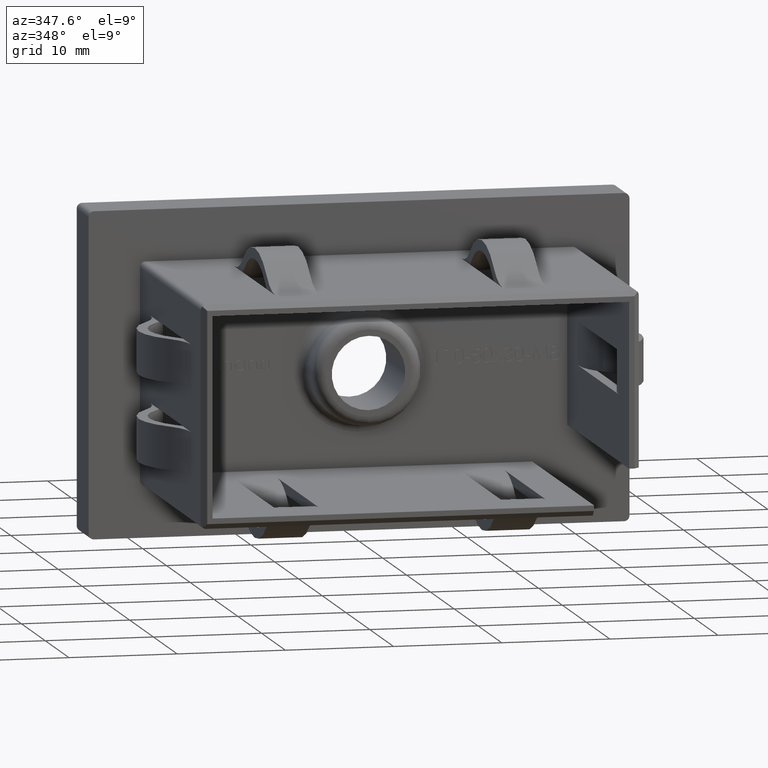
[diagram: clean part render]
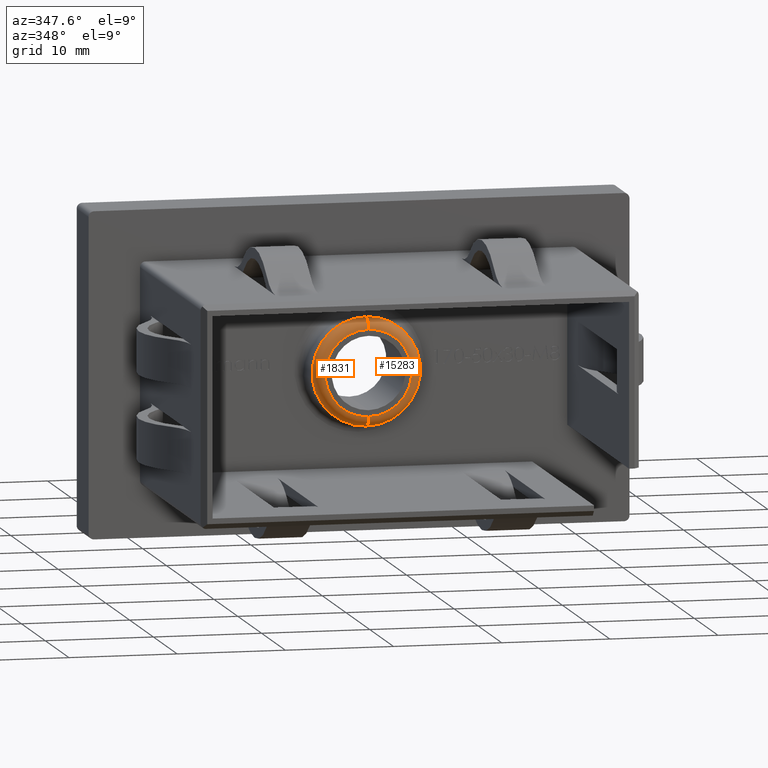
[diagram: same view with one multi-face feature highlighted, each face labeled with its STEP entity id]
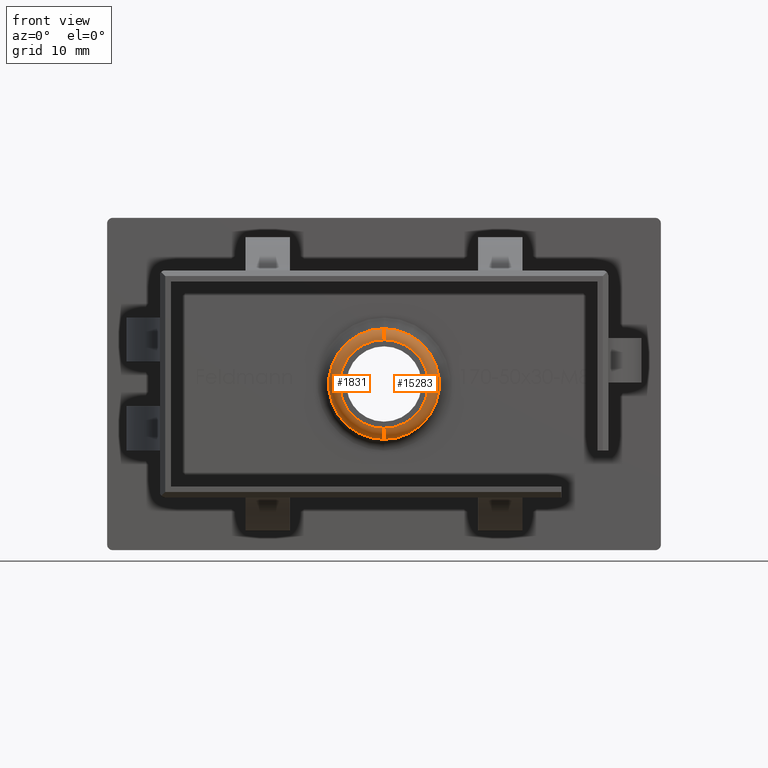
[diagram: same view with one multi-face feature highlighted, each face labeled with its STEP entity id]
A machine part, auxiliary view. The highlighted faces form ONE feature: a constant-radius fillet chain: 2 tangent blend faces with common blend radius 1 mm. The faces share edges in the B-rep.
A second angle (front view) of the same feature is appended — it is thin or edge-on in the first view.
Their STEP definitions:
[1] entity #1831 (Torus):
#496 = DIRECTION ( 'NONE',  ( 0.0000000000000000000, 1.000000000000000000, 0.0000000000000000000 ) ) ;
#762 = DIRECTION ( 'NONE',  ( 1.224646799147353500E-016, 0.0000000000000000000, -1.000000000000000000 ) ) ;
#842 = EDGE_LOOP ( 'NONE', ( #6872, #16637, #10544, #9324 ) ) ;
#1831 = ADVANCED_FACE ( 'NONE', ( #5930 ), #13854, .T. ) ;
#1853 = DIRECTION ( 'NONE',  ( 0.0000000000000000000, 0.0000000000000000000, 1.000000000000000000 ) ) ;
#2006 = DIRECTION ( 'NONE',  ( 0.0000000000000000000, 0.0000000000000000000, 1.000000000000000000 ) ) ;
#2951 = AXIS2_PLACEMENT_3D ( 'NONE', #17630, #7605, #762 ) ;
#3011 = AXIS2_PLACEMENT_3D ( 'NONE', #10283, #10221, #1853 ) ;
#4871 = VERTEX_POINT ( 'NONE', #17022 ) ;
#5305 = EDGE_CURVE ( 'NONE', #4871, #14915, #17259, .T. ) ;
#5363 = VERTEX_POINT ( 'NONE', #9442 ) ;
#5594 = DIRECTION ( 'NONE',  ( -1.000000000000000000, 0.0000000000000000000, 0.0000000000000000000 ) ) ;
#5930 = FACE_OUTER_BOUND ( 'NONE', #842, .T. ) ;
#6872 = ORIENTED_EDGE ( 'NONE', *, *, #5305, .F. ) ;
#7003 = DIRECTION ( 'NONE',  ( 0.0000000000000000000, 0.0000000000000000000, 1.000000000000000000 ) ) ;
#7605 = DIRECTION ( 'NONE',  ( 1.000000000000000000, -0.0000000000000000000, 1.224646799147353200E-016 ) ) ;
#7873 = AXIS2_PLACEMENT_3D ( 'NONE', #9077, #13369, #2006 ) ;
#8749 = DIRECTION ( 'NONE',  ( 0.0000000000000000000, 0.0000000000000000000, 1.000000000000000000 ) ) ;
#9077 = CARTESIAN_POINT ( 'NONE',  ( 0.0000000000000000000, -2.999999999999999100, 0.0000000000000000000 ) ) ;
#9285 = AXIS2_PLACEMENT_3D ( 'NONE', #14078, #5594, #7003 ) ;
#9324 = ORIENTED_EDGE ( 'NONE', *, *, #14996, .F. ) ;
#9370 = CIRCLE ( 'NONE', #7873, 5.000000000000000000 ) ;
#9442 = CARTESIAN_POINT ( 'NONE',  ( 0.0000000000000000000, -2.999999999999999100, 5.000000000000000000 ) ) ;
#10203 = CARTESIAN_POINT ( 'NONE',  ( 0.0000000000000000000, -3.999999999999999100, 4.000000000000000000 ) ) ;
#10221 = DIRECTION ( 'NONE',  ( -0.0000000000000000000, -1.000000000000000000, -0.0000000000000000000 ) ) ;
#10283 = CARTESIAN_POINT ( 'NONE',  ( 0.0000000000000000000, -3.999999999999999100, 0.0000000000000000000 ) ) ;
#10405 = CIRCLE ( 'NONE', #3011, 4.000000000000000000 ) ;
#10544 = ORIENTED_EDGE ( 'NONE', *, *, #16660, .T. ) ;
#10750 = VERTEX_POINT ( 'NONE', #10203 ) ;
#11193 = CIRCLE ( 'NONE', #9285, 1.000000000000000000 ) ;
#11702 = EDGE_CURVE ( 'NONE', #10750, #4871, #10405, .T. ) ;
#13369 = DIRECTION ( 'NONE',  ( 0.0000000000000000000, 1.000000000000000000, 0.0000000000000000000 ) ) ;
#13854 = TOROIDAL_SURFACE ( 'NONE', #16138, 4.000000000000000000, 1.000000000000000000 ) ;
#14078 = CARTESIAN_POINT ( 'NONE',  ( 0.0000000000000000000, -2.999999999999999100, 4.000000000000000000 ) ) ;
#14345 = CARTESIAN_POINT ( 'NONE',  ( 0.0000000000000000000, -2.999999999999999100, 0.0000000000000000000 ) ) ;
#14915 = VERTEX_POINT ( 'NONE', #16941 ) ;
#14996 = EDGE_CURVE ( 'NONE', #14915, #5363, #9370, .T. ) ;
#16138 = AXIS2_PLACEMENT_3D ( 'NONE', #14345, #496, #8749 ) ;
#16637 = ORIENTED_EDGE ( 'NONE', *, *, #11702, .F. ) ;
#16660 = EDGE_CURVE ( 'NONE', #10750, #5363, #11193, .T. ) ;
#16941 = CARTESIAN_POINT ( 'NONE',  ( 6.123233995736766300E-016, -2.999999999999999100, -5.000000000000000000 ) ) ;
#17022 = CARTESIAN_POINT ( 'NONE',  ( 5.510910596163088600E-016, -3.999999999999999100, -4.000000000000000000 ) ) ;
#17259 = CIRCLE ( 'NONE', #2951, 1.000000000000000000 ) ;
#17630 = CARTESIAN_POINT ( 'NONE',  ( 4.898587196589412800E-016, -2.999999999999999100, -4.000000000000000000 ) ) ;
[2] entity #15283 (Torus):
#762 = DIRECTION ( 'NONE',  ( 1.224646799147353500E-016, 0.0000000000000000000, -1.000000000000000000 ) ) ;
#2541 = CIRCLE ( 'NONE', #8474, 4.000000000000000000 ) ;
#2951 = AXIS2_PLACEMENT_3D ( 'NONE', #17630, #7605, #762 ) ;
#3924 = ORIENTED_EDGE ( 'NONE', *, *, #15341, .F. ) ;
#4266 = EDGE_LOOP ( 'NONE', ( #3924, #12477, #12850, #7841 ) ) ;
#4418 = CIRCLE ( 'NONE', #11952, 5.000000000000000000 ) ;
#4871 = VERTEX_POINT ( 'NONE', #17022 ) ;
#5305 = EDGE_CURVE ( 'NONE', #4871, #14915, #17259, .T. ) ;
#5363 = VERTEX_POINT ( 'NONE', #9442 ) ;
#5594 = DIRECTION ( 'NONE',  ( -1.000000000000000000, 0.0000000000000000000, 0.0000000000000000000 ) ) ;
#5936 = CARTESIAN_POINT ( 'NONE',  ( 0.0000000000000000000, -2.999999999999999100, 0.0000000000000000000 ) ) ;
#6225 = DIRECTION ( 'NONE',  ( 0.0000000000000000000, 0.0000000000000000000, 1.000000000000000000 ) ) ;
#6501 = TOROIDAL_SURFACE ( 'NONE', #7519, 4.000000000000000000, 1.000000000000000000 ) ;
#6752 = EDGE_CURVE ( 'NONE', #5363, #14915, #4418, .T. ) ;
#7003 = DIRECTION ( 'NONE',  ( 0.0000000000000000000, 0.0000000000000000000, 1.000000000000000000 ) ) ;
#7355 = DIRECTION ( 'NONE',  ( 0.0000000000000000000, 0.0000000000000000000, 1.000000000000000000 ) ) ;
#7519 = AXIS2_PLACEMENT_3D ( 'NONE', #5936, #14418, #7355 ) ;
#7605 = DIRECTION ( 'NONE',  ( 1.000000000000000000, -0.0000000000000000000, 1.224646799147353200E-016 ) ) ;
#7841 = ORIENTED_EDGE ( 'NONE', *, *, #16660, .F. ) ;
#7971 = DIRECTION ( 'NONE',  ( 0.0000000000000000000, 0.0000000000000000000, 1.000000000000000000 ) ) ;
#8474 = AXIS2_PLACEMENT_3D ( 'NONE', #10477, #16013, #6225 ) ;
#9185 = CARTESIAN_POINT ( 'NONE',  ( 0.0000000000000000000, -2.999999999999999100, 0.0000000000000000000 ) ) ;
#9285 = AXIS2_PLACEMENT_3D ( 'NONE', #14078, #5594, #7003 ) ;
#9442 = CARTESIAN_POINT ( 'NONE',  ( 0.0000000000000000000, -2.999999999999999100, 5.000000000000000000 ) ) ;
#10203 = CARTESIAN_POINT ( 'NONE',  ( 0.0000000000000000000, -3.999999999999999100, 4.000000000000000000 ) ) ;
#10477 = CARTESIAN_POINT ( 'NONE',  ( 0.0000000000000000000, -3.999999999999999100, 0.0000000000000000000 ) ) ;
#10750 = VERTEX_POINT ( 'NONE', #10203 ) ;
#11193 = CIRCLE ( 'NONE', #9285, 1.000000000000000000 ) ;
#11952 = AXIS2_PLACEMENT_3D ( 'NONE', #9185, #16403, #7971 ) ;
#12477 = ORIENTED_EDGE ( 'NONE', *, *, #5305, .T. ) ;
#12850 = ORIENTED_EDGE ( 'NONE', *, *, #6752, .F. ) ;
#14078 = CARTESIAN_POINT ( 'NONE',  ( 0.0000000000000000000, -2.999999999999999100, 4.000000000000000000 ) ) ;
#14418 = DIRECTION ( 'NONE',  ( 0.0000000000000000000, 1.000000000000000000, 0.0000000000000000000 ) ) ;
#14915 = VERTEX_POINT ( 'NONE', #16941 ) ;
#15283 = ADVANCED_FACE ( 'NONE', ( #16428 ), #6501, .T. ) ;
#15341 = EDGE_CURVE ( 'NONE', #4871, #10750, #2541, .T. ) ;
#16013 = DIRECTION ( 'NONE',  ( -0.0000000000000000000, -1.000000000000000000, -0.0000000000000000000 ) ) ;
#16403 = DIRECTION ( 'NONE',  ( 0.0000000000000000000, 1.000000000000000000, 0.0000000000000000000 ) ) ;
#16428 = FACE_OUTER_BOUND ( 'NONE', #4266, .T. ) ;
#16660 = EDGE_CURVE ( 'NONE', #10750, #5363, #11193, .T. ) ;
#16941 = CARTESIAN_POINT ( 'NONE',  ( 6.123233995736766300E-016, -2.999999999999999100, -5.000000000000000000 ) ) ;
#17022 = CARTESIAN_POINT ( 'NONE',  ( 5.510910596163088600E-016, -3.999999999999999100, -4.000000000000000000 ) ) ;
#17259 = CIRCLE ( 'NONE', #2951, 1.000000000000000000 ) ;
#17630 = CARTESIAN_POINT ( 'NONE',  ( 4.898587196589412800E-016, -2.999999999999999100, -4.000000000000000000 ) ) ;